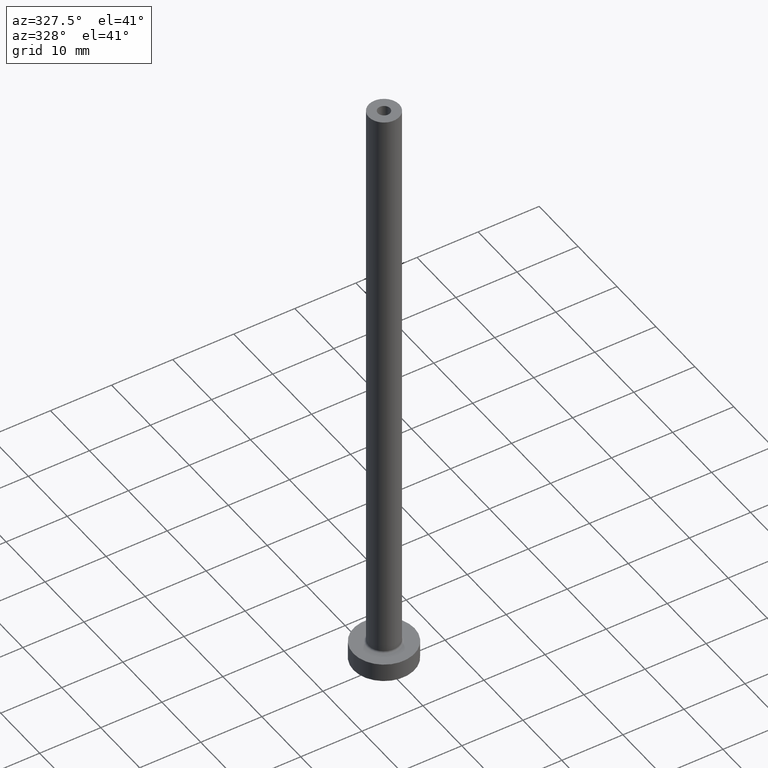
[diagram: clean part render]
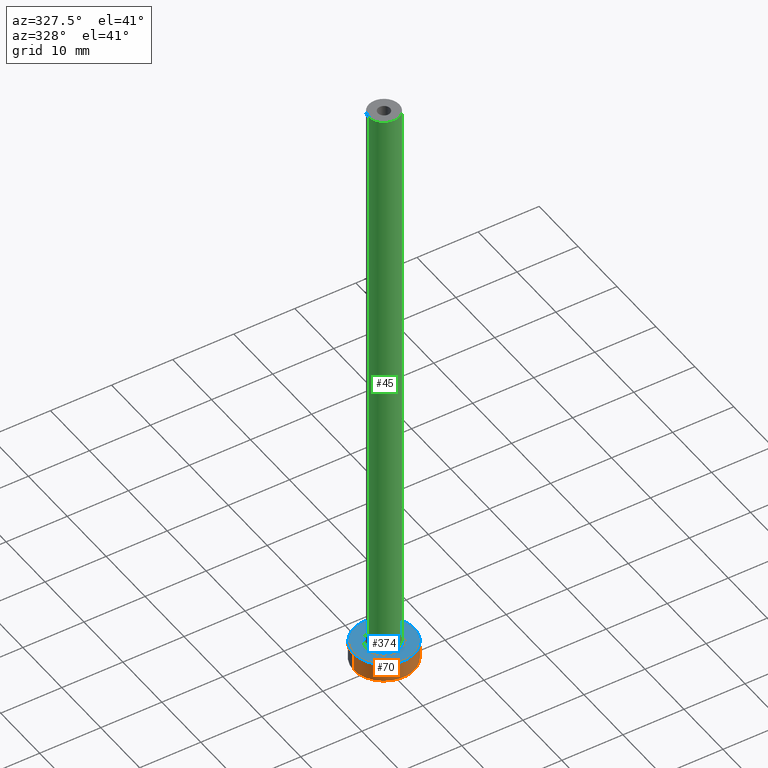
[diagram: same view with three faces highlighted in distinct colors, each labeled with its STEP entity id]
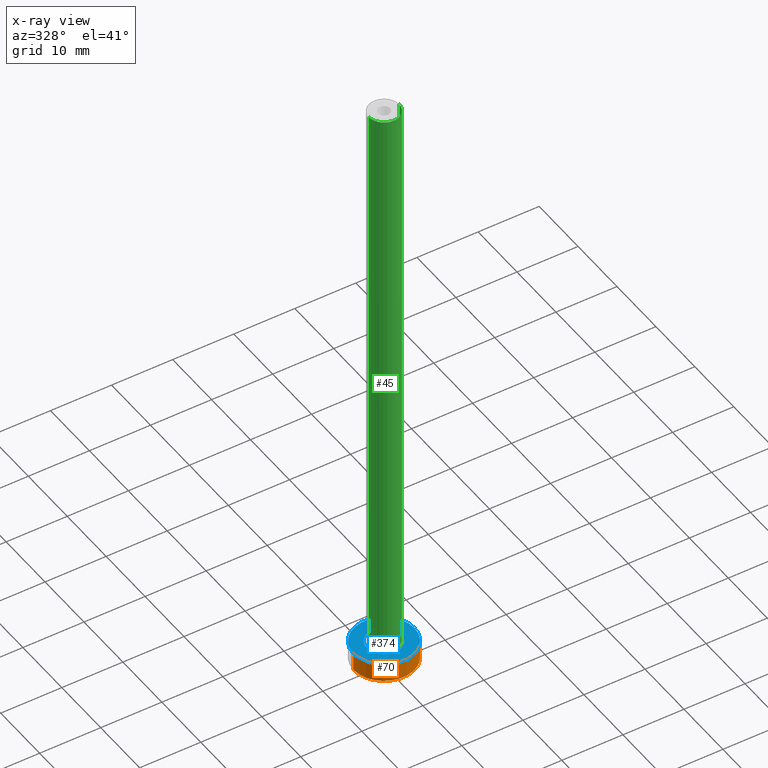
[diagram: x-ray of the same camera — body ghosted, the three highlighted faces saturated]
A machine part, auxiliary view with three faces highlighted in distinct colors.
The next image is the same camera in x-ray (body ghosted, the three faces saturated) — at least one of them is partly hidden behind the body in this view.
Their STEP definitions:

[orange] entity #70 — the highlighted cylindrical surface (edge-blend (fillet) strip) has radius 5 mm, axis along (-0, -0, -1).
#7 = EDGE_LOOP ( 'NONE', ( #163, #356, #424, #399 ) ) ;
#11 = FACE_OUTER_BOUND ( 'NONE', #7, .T. ) ;
#34 = VERTEX_POINT ( 'NONE', #108 ) ;
#40 = DIRECTION ( 'NONE',  ( 0.000000000000000000, 0.000000000000000000, 1.000000000000000000 ) ) ;
#52 = DIRECTION ( 'NONE',  ( -1.000000000000000000, 0.000000000000000000, 0.000000000000000000 ) ) ;
#56 = CARTESIAN_POINT ( 'NONE',  ( 0.000000000000000000, 0.000000000000000000, 3.000000000000000000 ) ) ;
#61 = CARTESIAN_POINT ( 'NONE',  ( -5.000000000000000000, 0.000000000000000000, 3.000000000000000000 ) ) ;
#70 = ADVANCED_FACE ( 'NONE', ( #11 ), #328, .T. ) ;
#96 = AXIS2_PLACEMENT_3D ( 'NONE', #360, #401, #52 ) ;
#100 = CARTESIAN_POINT ( 'NONE',  ( -5.000000000000000000, 0.000000000000000000, 3.000000000000000000 ) ) ;
#108 = CARTESIAN_POINT ( 'NONE',  ( 5.000000000000000000, 6.123233995736766282E-16, 3.000000000000000000 ) ) ;
#129 = EDGE_CURVE ( 'NONE', #34, #413, #147, .T. ) ;
#131 = CIRCLE ( 'NONE', #232, 5.000000000000000000 ) ;
#147 = LINE ( 'NONE', #189, #332 ) ;
#153 = CIRCLE ( 'NONE', #416, 5.000000000000000000 ) ;
#163 = ORIENTED_EDGE ( 'NONE', *, *, #129, .F. ) ;
#170 = VECTOR ( 'NONE', #237, 1000.000000000000000 ) ;
#189 = CARTESIAN_POINT ( 'NONE',  ( 5.000000000000000000, 6.123233995736766282E-16, 3.000000000000000000 ) ) ;
#211 = VERTEX_POINT ( 'NONE', #421 ) ;
#218 = VERTEX_POINT ( 'NONE', #61 ) ;
#232 = AXIS2_PLACEMENT_3D ( 'NONE', #56, #297, #381 ) ;
#237 = DIRECTION ( 'NONE',  ( -0.000000000000000000, -0.000000000000000000, -1.000000000000000000 ) ) ;
#246 = EDGE_CURVE ( 'NONE', #218, #34, #131, .T. ) ;
#247 = CARTESIAN_POINT ( 'NONE',  ( 0.000000000000000000, 0.000000000000000000, 0.000000000000000000 ) ) ;
#285 = CARTESIAN_POINT ( 'NONE',  ( 5.000000000000000000, 6.123233995736766282E-16, 0.000000000000000000 ) ) ;
#297 = DIRECTION ( 'NONE',  ( 0.000000000000000000, 0.000000000000000000, 1.000000000000000000 ) ) ;
#306 = EDGE_CURVE ( 'NONE', #218, #211, #457, .T. ) ;
#314 = DIRECTION ( 'NONE',  ( 1.000000000000000000, 0.000000000000000000, 0.000000000000000000 ) ) ;
#328 = CYLINDRICAL_SURFACE ( 'NONE', #96, 5.000000000000000000 ) ;
#332 = VECTOR ( 'NONE', #404, 1000.000000000000000 ) ;
#356 = ORIENTED_EDGE ( 'NONE', *, *, #246, .F. ) ;
#360 = CARTESIAN_POINT ( 'NONE',  ( 0.000000000000000000, 0.000000000000000000, 3.000000000000000000 ) ) ;
#381 = DIRECTION ( 'NONE',  ( 1.000000000000000000, 0.000000000000000000, 0.000000000000000000 ) ) ;
#399 = ORIENTED_EDGE ( 'NONE', *, *, #443, .T. ) ;
#401 = DIRECTION ( 'NONE',  ( -0.000000000000000000, -0.000000000000000000, -1.000000000000000000 ) ) ;
#404 = DIRECTION ( 'NONE',  ( -0.000000000000000000, -0.000000000000000000, -1.000000000000000000 ) ) ;
#413 = VERTEX_POINT ( 'NONE', #285 ) ;
#416 = AXIS2_PLACEMENT_3D ( 'NONE', #247, #40, #314 ) ;
#421 = CARTESIAN_POINT ( 'NONE',  ( -5.000000000000000000, 0.000000000000000000, 0.000000000000000000 ) ) ;
#424 = ORIENTED_EDGE ( 'NONE', *, *, #306, .T. ) ;
#443 = EDGE_CURVE ( 'NONE', #211, #413, #153, .T. ) ;
#457 = LINE ( 'NONE', #100, #170 ) ;

[blue] entity #374 — the highlighted planar face has unit normal (0, 0, 1).
#17 = CIRCLE ( 'NONE', #273, 5.000000000000000000 ) ;
#24 = CARTESIAN_POINT ( 'NONE',  ( 0.000000000000000000, 0.000000000000000000, 3.000000000000000000 ) ) ;
#31 = AXIS2_PLACEMENT_3D ( 'NONE', #383, #243, #63 ) ;
#34 = VERTEX_POINT ( 'NONE', #108 ) ;
#37 = EDGE_CURVE ( 'NONE', #38, #257, #118, .T. ) ;
#38 = VERTEX_POINT ( 'NONE', #177 ) ;
#56 = CARTESIAN_POINT ( 'NONE',  ( 0.000000000000000000, 0.000000000000000000, 3.000000000000000000 ) ) ;
#61 = CARTESIAN_POINT ( 'NONE',  ( -5.000000000000000000, 0.000000000000000000, 3.000000000000000000 ) ) ;
#63 = DIRECTION ( 'NONE',  ( 1.000000000000000000, 0.000000000000000000, 0.000000000000000000 ) ) ;
#91 = FACE_BOUND ( 'NONE', #181, .T. ) ;
#103 = CARTESIAN_POINT ( 'NONE',  ( 0.000000000000000000, 0.000000000000000000, 3.000000000000000000 ) ) ;
#108 = CARTESIAN_POINT ( 'NONE',  ( 5.000000000000000000, 6.123233995736766282E-16, 3.000000000000000000 ) ) ;
#118 = CIRCLE ( 'NONE', #445, 2.799999999999999822 ) ;
#131 = CIRCLE ( 'NONE', #232, 5.000000000000000000 ) ;
#142 = DIRECTION ( 'NONE',  ( -0.000000000000000000, -0.000000000000000000, -1.000000000000000000 ) ) ;
#144 = ORIENTED_EDGE ( 'NONE', *, *, #338, .T. ) ;
#166 = ORIENTED_EDGE ( 'NONE', *, *, #246, .T. ) ;
#177 = CARTESIAN_POINT ( 'NONE',  ( -2.799999999999999822, 3.429011037612589276E-16, 2.999999999999998668 ) ) ;
#181 = EDGE_LOOP ( 'NONE', ( #311, #337 ) ) ;
#197 = AXIS2_PLACEMENT_3D ( 'NONE', #282, #434, #317 ) ;
#203 = CARTESIAN_POINT ( 'NONE',  ( 2.799999999999999822, 0.000000000000000000, 2.999999999999998668 ) ) ;
#218 = VERTEX_POINT ( 'NONE', #61 ) ;
#232 = AXIS2_PLACEMENT_3D ( 'NONE', #56, #297, #381 ) ;
#243 = DIRECTION ( 'NONE',  ( -0.000000000000000000, -0.000000000000000000, -1.000000000000000000 ) ) ;
#246 = EDGE_CURVE ( 'NONE', #218, #34, #131, .T. ) ;
#255 = DIRECTION ( 'NONE',  ( 1.000000000000000000, 0.000000000000000000, 0.000000000000000000 ) ) ;
#257 = VERTEX_POINT ( 'NONE', #203 ) ;
#269 = DIRECTION ( 'NONE',  ( 1.000000000000000000, 0.000000000000000000, 0.000000000000000000 ) ) ;
#273 = AXIS2_PLACEMENT_3D ( 'NONE', #24, #450, #269 ) ;
#282 = CARTESIAN_POINT ( 'NONE',  ( 0.000000000000000000, 0.000000000000000000, 3.000000000000000000 ) ) ;
#297 = DIRECTION ( 'NONE',  ( 0.000000000000000000, 0.000000000000000000, 1.000000000000000000 ) ) ;
#311 = ORIENTED_EDGE ( 'NONE', *, *, #323, .T. ) ;
#317 = DIRECTION ( 'NONE',  ( 1.000000000000000000, 0.000000000000000000, -0.000000000000000000 ) ) ;
#323 = EDGE_CURVE ( 'NONE', #257, #38, #458, .T. ) ;
#337 = ORIENTED_EDGE ( 'NONE', *, *, #37, .T. ) ;
#338 = EDGE_CURVE ( 'NONE', #34, #218, #17, .T. ) ;
#374 = ADVANCED_FACE ( 'NONE', ( #91, #376 ), #389, .T. ) ;
#376 = FACE_OUTER_BOUND ( 'NONE', #422, .T. ) ;
#381 = DIRECTION ( 'NONE',  ( 1.000000000000000000, 0.000000000000000000, 0.000000000000000000 ) ) ;
#383 = CARTESIAN_POINT ( 'NONE',  ( 0.000000000000000000, 0.000000000000000000, 3.000000000000000000 ) ) ;
#389 = PLANE ( 'NONE',  #197 ) ;
#422 = EDGE_LOOP ( 'NONE', ( #166, #144 ) ) ;
#434 = DIRECTION ( 'NONE',  ( 0.000000000000000000, 0.000000000000000000, 1.000000000000000000 ) ) ;
#445 = AXIS2_PLACEMENT_3D ( 'NONE', #103, #142, #255 ) ;
#450 = DIRECTION ( 'NONE',  ( 0.000000000000000000, 0.000000000000000000, 1.000000000000000000 ) ) ;
#458 = CIRCLE ( 'NONE', #31, 2.799999999999999822 ) ;

[green] entity #45 — the highlighted cylindrical surface (edge-blend (fillet) strip) has radius 2.5 mm, axis along (-0, -0, -1).
#1 = DIRECTION ( 'NONE',  ( 1.000000000000000000, 0.000000000000000000, 0.000000000000000000 ) ) ;
#4 = AXIS2_PLACEMENT_3D ( 'NONE', #114, #293, #326 ) ;
#16 = CIRCLE ( 'NONE', #4, 2.500000000000000000 ) ;
#19 = EDGE_CURVE ( 'NONE', #64, #172, #87, .T. ) ;
#26 = LINE ( 'NONE', #235, #438 ) ;
#43 = CARTESIAN_POINT ( 'NONE',  ( -2.500000000000000000, 0.000000000000000000, 100.0000000000000000 ) ) ;
#45 = ADVANCED_FACE ( 'NONE', ( #315 ), #281, .T. ) ;
#57 = DIRECTION ( 'NONE',  ( -0.000000000000000000, -0.000000000000000000, -1.000000000000000000 ) ) ;
#64 = VERTEX_POINT ( 'NONE', #43 ) ;
#75 = DIRECTION ( 'NONE',  ( 0.000000000000000000, 0.000000000000000000, 1.000000000000000000 ) ) ;
#77 = VERTEX_POINT ( 'NONE', #365 ) ;
#85 = DIRECTION ( 'NONE',  ( -1.000000000000000000, 0.000000000000000000, 0.000000000000000000 ) ) ;
#87 = CIRCLE ( 'NONE', #324, 2.500000000000000000 ) ;
#110 = VERTEX_POINT ( 'NONE', #187 ) ;
#114 = CARTESIAN_POINT ( 'NONE',  ( 0.000000000000000000, 0.000000000000000000, 3.299999999999997158 ) ) ;
#115 = EDGE_CURVE ( 'NONE', #110, #77, #16, .T. ) ;
#123 = CARTESIAN_POINT ( 'NONE',  ( -2.500000000000000000, 0.000000000000000000, 100.0000000000000000 ) ) ;
#172 = VERTEX_POINT ( 'NONE', #201 ) ;
#180 = EDGE_LOOP ( 'NONE', ( #308, #379, #377, #286 ) ) ;
#187 = CARTESIAN_POINT ( 'NONE',  ( -2.500000000000000000, 0.000000000000000000, 3.299999999999997158 ) ) ;
#201 = CARTESIAN_POINT ( 'NONE',  ( 2.500000000000000000, 3.061616997868382648E-16, 100.0000000000000000 ) ) ;
#206 = LINE ( 'NONE', #123, #216 ) ;
#210 = CARTESIAN_POINT ( 'NONE',  ( 0.000000000000000000, 0.000000000000000000, 100.0000000000000000 ) ) ;
#216 = VECTOR ( 'NONE', #57, 1000.000000000000000 ) ;
#229 = EDGE_CURVE ( 'NONE', #172, #77, #26, .T. ) ;
#235 = CARTESIAN_POINT ( 'NONE',  ( 2.500000000000000000, 3.061616997868382648E-16, 100.0000000000000000 ) ) ;
#260 = CARTESIAN_POINT ( 'NONE',  ( 0.000000000000000000, 0.000000000000000000, 100.0000000000000000 ) ) ;
#261 = DIRECTION ( 'NONE',  ( -0.000000000000000000, -0.000000000000000000, -1.000000000000000000 ) ) ;
#281 = CYLINDRICAL_SURFACE ( 'NONE', #345, 2.500000000000000000 ) ;
#286 = ORIENTED_EDGE ( 'NONE', *, *, #115, .T. ) ;
#289 = EDGE_CURVE ( 'NONE', #64, #110, #206, .T. ) ;
#293 = DIRECTION ( 'NONE',  ( 0.000000000000000000, 0.000000000000000000, 1.000000000000000000 ) ) ;
#308 = ORIENTED_EDGE ( 'NONE', *, *, #229, .F. ) ;
#315 = FACE_OUTER_BOUND ( 'NONE', #180, .T. ) ;
#324 = AXIS2_PLACEMENT_3D ( 'NONE', #210, #75, #1 ) ;
#326 = DIRECTION ( 'NONE',  ( 1.000000000000000000, 0.000000000000000000, 0.000000000000000000 ) ) ;
#340 = DIRECTION ( 'NONE',  ( -0.000000000000000000, -0.000000000000000000, -1.000000000000000000 ) ) ;
#345 = AXIS2_PLACEMENT_3D ( 'NONE', #260, #261, #85 ) ;
#365 = CARTESIAN_POINT ( 'NONE',  ( 2.500000000000000000, 3.061616997868382648E-16, 3.299999999999997158 ) ) ;
#377 = ORIENTED_EDGE ( 'NONE', *, *, #289, .T. ) ;
#379 = ORIENTED_EDGE ( 'NONE', *, *, #19, .F. ) ;
#438 = VECTOR ( 'NONE', #340, 1000.000000000000000 ) ;